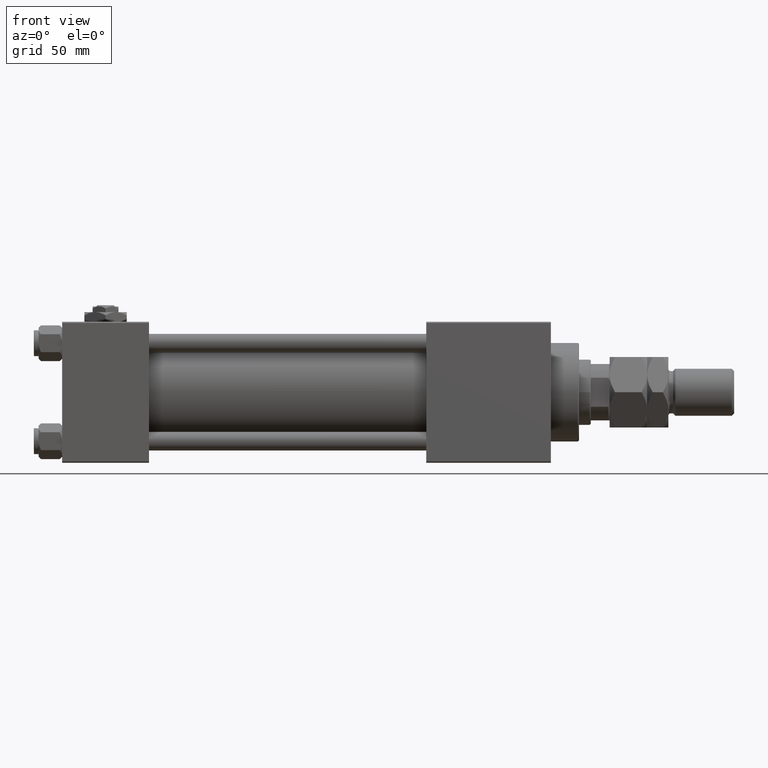
[diagram: clean part render]
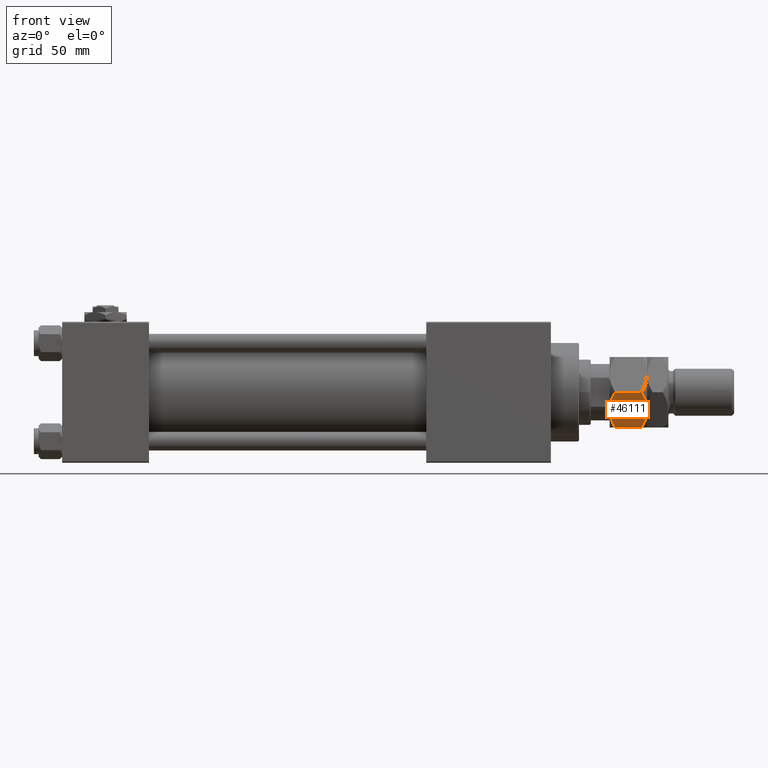
[diagram: same view with one face highlighted and labeled with its STEP entity id]
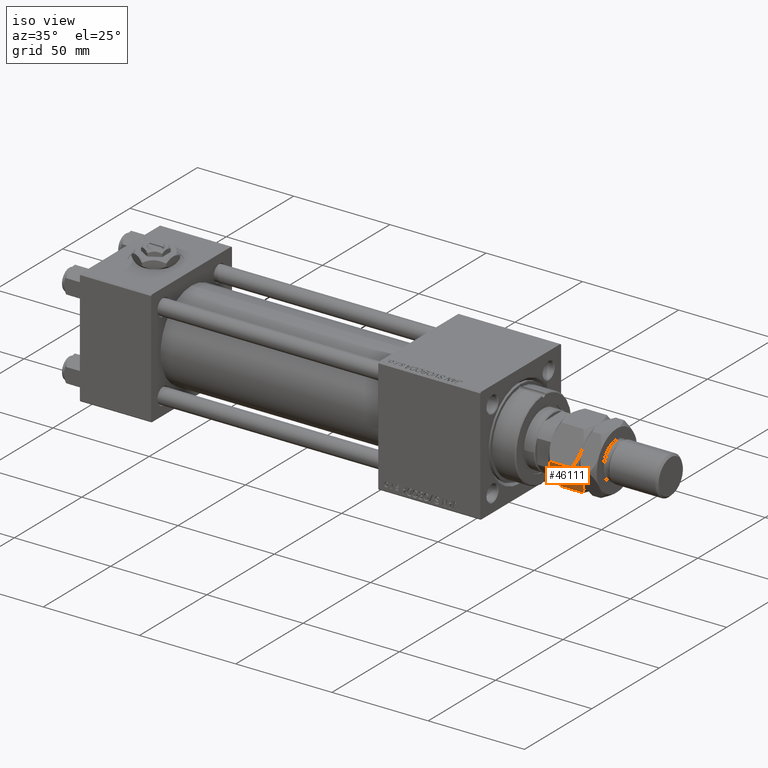
[diagram: same view with one face highlighted and labeled with its STEP entity id]
A machine part, front view. The second image highlights one B-rep face of the part: STEP entity #46111.
A second angle (iso view) of the same face is appended — the face is thin or edge-on in the first view.
In plain terms, the highlighted planar face has unit normal (0, 0.866, 0.5).
Its self-contained STEP definition (entity closure, byte-faithful):
#273 = CARTESIAN_POINT ( 'NONE',  ( 13.82389157469335750, -9.339280553791367012, 1.641481559741792884 ) ) ;
#813 = CARTESIAN_POINT ( 'NONE',  ( 8.823580389329300999, -12.22621156269320331, 0.05953537397470176629 ) ) ;
#1141 = B_SPLINE_CURVE_WITH_KNOTS ( 'NONE', 3,
 ( #23438, #35948, #3044, #52818, #52555, #15543 ),
 .UNSPECIFIED., .F., .F.,
 ( 4, 2, 4 ),
 ( 0.008977392552884447263, 0.01343452311421656532, 0.01789165367554868338 ),
 .UNSPECIFIED. ) ;
#1507 = EDGE_LOOP ( 'NONE', ( #48295, #36604, #11199, #20772, #7814, #51824 ) ) ;
#1712 = DIRECTION ( 'NONE',  ( -0.000000000000000000, -0.000000000000000000, -1.000000000000000000 ) ) ;
#2016 = CARTESIAN_POINT ( 'NONE',  ( 4.913081180497406386, -14.48393933357810681, 0.2303299219392160313 ) ) ;
#2359 = CARTESIAN_POINT ( 'NONE',  ( 15.00000000000000000, -8.660254037844389075, 16.00000000000000000 ) ) ;
#3044 = CARTESIAN_POINT ( 'NONE',  ( 10.08691881950258917, -11.49682277995505331, 15.76967007806078591 ) ) ;
#4106 = CARTESIAN_POINT ( 'NONE',  ( 10.75222765045651308, -11.11270654730956586, 0.4475714085130263475 ) ) ;
#5193 = AXIS2_PLACEMENT_3D ( 'NONE', #20858, #16783, #49989 ) ;
#5569 = PLANE ( 'NONE',  #5193 ) ;
#5648 = VERTEX_POINT ( 'NONE', #29999 ) ;
#6707 = CARTESIAN_POINT ( 'NONE',  ( 15.00000000000000000, -8.660254037844389075, 2.320508075688767047 ) ) ;
#7231 = LINE ( 'NONE', #2359, #21165 ) ;
#7814 = ORIENTED_EDGE ( 'NONE', *, *, #32875, .T. ) ;
#8184 = CARTESIAN_POINT ( 'NONE',  ( 15.00000000000000000, -8.660254037844389075, 13.67949192431123961 ) ) ;
#9823 = VERTEX_POINT ( 'NONE', #25122 ) ;
#10272 = CARTESIAN_POINT ( 'NONE',  ( 6.176419610670694560, -13.75455055083996214, 15.94046462602530312 ) ) ;
#10587 = EDGE_CURVE ( 'NONE', #18942, #13948, #33708, .T. ) ;
#11199 = ORIENTED_EDGE ( 'NONE', *, *, #30187, .F. ) ;
#12848 = CARTESIAN_POINT ( 'NONE',  ( 7.499999999999993783, -12.99038105676658006, 16.00000000000000000 ) ) ;
#13948 = VERTEX_POINT ( 'NONE', #25316 ) ;
#14611 = CARTESIAN_POINT ( 'NONE',  ( 2.378834511187501111, -15.94708733029709791, 14.93551393225600066 ) ) ;
#15511 = VECTOR ( 'NONE', #1712, 1000.000000000000000 ) ;
#15543 = CARTESIAN_POINT ( 'NONE',  ( 15.00000000000000000, -8.660254037844389075, 13.67949192431123961 ) ) ;
#15602 = VERTEX_POINT ( 'NONE', #8184 ) ;
#16783 = DIRECTION ( 'NONE',  ( -0.4999999999999996669, 0.8660254037844388186, 0.000000000000000000 ) ) ;
#18153 = CARTESIAN_POINT ( 'NONE',  ( 6.843123817691747490, -13.36962869744650284, 16.00000000000000711 ) ) ;
#18942 = VERTEX_POINT ( 'NONE', #6707 ) ;
#20413 = CARTESIAN_POINT ( 'NONE',  ( 8.156876182308243628, -12.61113341608666083, -1.722865014715246890E-15 ) ) ;
#20680 = CARTESIAN_POINT ( 'NONE',  ( 10.11832554202262102, -11.47869010025374870, 0.2838026619462938327 ) ) ;
#20772 = ORIENTED_EDGE ( 'NONE', *, *, #29533, .F. ) ;
#20858 = CARTESIAN_POINT ( 'NONE',  ( -3.035766082959412415E-15, -17.32050807568877104, 16.00000000000000000 ) ) ;
#21165 = VECTOR ( 'NONE', #27910, 1000.000000000000000 ) ;
#23220 = CARTESIAN_POINT ( 'NONE',  ( 7.499999999999994671, -12.99038105676658184, 0.000000000000000000 ) ) ;
#23312 = CARTESIAN_POINT ( 'NONE',  ( 1.176108425306638505, -16.64148155974179488, 14.35851844025821755 ) ) ;
#23438 = CARTESIAN_POINT ( 'NONE',  ( 7.499999999999993783, -12.99038105676658006, 16.00000000000000000 ) ) ;
#24773 = CARTESIAN_POINT ( 'NONE',  ( 15.00000000000000000, -8.660254037844389075, 2.320508075688767047 ) ) ;
#25122 = CARTESIAN_POINT ( 'NONE',  ( -3.416099238086855886E-15, -17.32050807568877104, 13.67949192431124317 ) ) ;
#25316 = CARTESIAN_POINT ( 'NONE',  ( 7.499999999999994671, -12.99038105676658184, 0.000000000000000000 ) ) ;
#27577 = CARTESIAN_POINT ( 'NONE',  ( -2.796947266322166691E-15, -17.32050807568877104, 2.320508075688761718 ) ) ;
#27910 = DIRECTION ( 'NONE',  ( -0.000000000000000000, -0.000000000000000000, -1.000000000000000000 ) ) ;
#29533 = EDGE_CURVE ( 'NONE', #9823, #43635, #30451, .T. ) ;
#29999 = CARTESIAN_POINT ( 'NONE',  ( -2.796947266322166691E-15, -17.32050807568877104, 2.320508075688761718 ) ) ;
#30018 = B_SPLINE_CURVE_WITH_KNOTS ( 'NONE', 3,
 ( #23220, #31917, #2016, #40340, #43919, #27577 ),
 .UNSPECIFIED., .F., .F.,
 ( 4, 2, 4 ),
 ( 0.008977392552884455937, 0.01343452311421657053, 0.01789165367554868685 ),
 .UNSPECIFIED. ) ;
#30187 = EDGE_CURVE ( 'NONE', #43635, #15602, #1141, .T. ) ;
#30451 = B_SPLINE_CURVE_WITH_KNOTS ( 'NONE', 3,
 ( #39103, #23312, #14611, #47824, #51889, #10272, #18153, #30676 ),
 .UNSPECIFIED., .F., .F.,
 ( 4, 2, 2, 4 ),
 ( 2.544309033646407248E-07, 0.004488823491893905240, 0.006733108022389175384, 0.008977392552884447263 ),
 .UNSPECIFIED. ) ;
#30676 = CARTESIAN_POINT ( 'NONE',  ( 7.499999999999993783, -12.99038105676658006, 16.00000000000000000 ) ) ;
#31917 = CARTESIAN_POINT ( 'NONE',  ( 6.195449321423083688, -13.74356374221447119, -1.770863548392988866E-15 ) ) ;
#32875 = EDGE_CURVE ( 'NONE', #9823, #5648, #42531, .T. ) ;
#33708 = B_SPLINE_CURVE_WITH_KNOTS ( 'NONE', 3,
 ( #24773, #273, #41366, #4106, #20680, #813, #20413, #37278 ),
 .UNSPECIFIED., .F., .F.,
 ( 4, 2, 2, 4 ),
 ( 2.544309033642853415E-07, 0.004488823491893907842, 0.006733108022389181456, 0.008977392552884455937 ),
 .UNSPECIFIED. ) ;
#34398 = FACE_OUTER_BOUND ( 'NONE', #1507, .T. ) ;
#35948 = CARTESIAN_POINT ( 'NONE',  ( 8.804550678576907430, -12.23719837131869248, 16.00000000000000000 ) ) ;
#36604 = ORIENTED_EDGE ( 'NONE', *, *, #37804, .F. ) ;
#37278 = CARTESIAN_POINT ( 'NONE',  ( 7.499999999999994671, -12.99038105676658184, 0.000000000000000000 ) ) ;
#37804 = EDGE_CURVE ( 'NONE', #15602, #18942, #7231, .T. ) ;
#39103 = CARTESIAN_POINT ( 'NONE',  ( -3.416099238086855886E-15, -17.32050807568877104, 13.67949192431124317 ) ) ;
#40340 = CARTESIAN_POINT ( 'NONE',  ( 2.383929548160349299, -15.94414570932928576, 1.060479031370876957 ) ) ;
#41366 = CARTESIAN_POINT ( 'NONE',  ( 12.62116548881249756, -10.03367478323606754, 1.064486067744006892 ) ) ;
#42531 = LINE ( 'NONE', #46614, #15511 ) ;
#43635 = VERTEX_POINT ( 'NONE', #12848 ) ;
#43919 = CARTESIAN_POINT ( 'NONE',  ( 1.174746544192159625, -16.64226784216984711, 1.642267842169777836 ) ) ;
#45208 = EDGE_CURVE ( 'NONE', #13948, #5648, #30018, .T. ) ;
#46111 = ADVANCED_FACE ( 'NONE', ( #34398 ), #5569, .F. ) ;
#46614 = CARTESIAN_POINT ( 'NONE',  ( -3.035766082959412415E-15, -17.32050807568877104, 16.00000000000000000 ) ) ;
#47824 = CARTESIAN_POINT ( 'NONE',  ( 4.247772349543483372, -14.86805556622359425, 15.55242859148698109 ) ) ;
#48295 = ORIENTED_EDGE ( 'NONE', *, *, #10587, .F. ) ;
#49989 = DIRECTION ( 'NONE',  ( -0.8660254037844388186, -0.4999999999999996669, 0.000000000000000000 ) ) ;
#51824 = ORIENTED_EDGE ( 'NONE', *, *, #45208, .F. ) ;
#51889 = CARTESIAN_POINT ( 'NONE',  ( 4.881674457977372761, -14.50207201327941320, 15.71619733805371411 ) ) ;
#52555 = CARTESIAN_POINT ( 'NONE',  ( 13.82525345580783416, -9.338494271363316557, 14.35773215783021861 ) ) ;
#52818 = CARTESIAN_POINT ( 'NONE',  ( 12.61607045183964360, -10.03661640420387080, 14.93952096862912171 ) ) ;